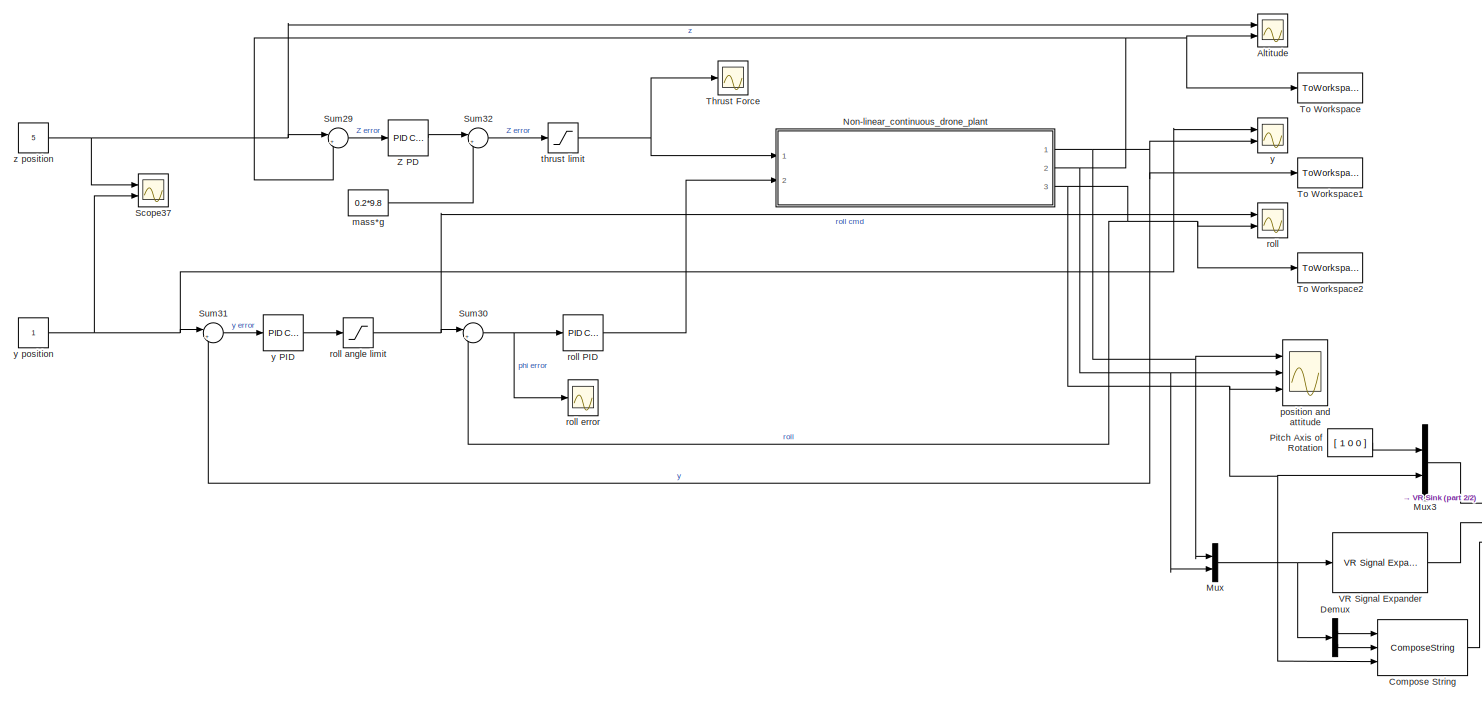
[diagram: root canvas - part 1/2, most of the canvas]
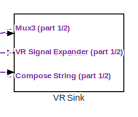
[diagram: root canvas - part 2/2, bottom right region]
MODEL slx_59ada7147401
KIND model
CONFIG AbsTol = auto
CONFIG EnableMultiTasking = off
CONFIG FixedStep = 0.01
CONFIG MaxStep = auto
CONFIG MinStep = auto
CONFIG RelTol = 1e-3
CONFIG SampleTimeConstraint = Unconstrained
CONFIG Solver = FixedStepAuto
CONFIG SolverName = FixedStepAuto
CONFIG StartTime = 0.0
CONFIG StopTime = 100
BLOCK [Scope] Altitude
  Floating = off
  NumInputPorts = 2
  Ports = [2]
  ScopeSpecificationString = Simulink.scopes.TimeScopeBlockCfg('CurrentConfiguration', extmgr.ConfigurationSet(extmgr.Configuration('Core','General UI',true),extmgr.Configuration('Core','Source UI',true),extmgr.Configuration('Sources','WiredSimulink',true,'DataLoggingVariableName','ScopeData10'),extmgr.Configuration('Visuals','Time Domain',true,'SerializedDisplays',{struct('MinYLimReal','-11.51801','MaxYLimReal','1.27978','YL...<+1466ch>
BLOCK [ComposeString] Compose String
  Format = 'Xe      : %7.2f m\nZe      : %7.2f m\nAttitude: %7.2f rad'
  Ports = [3, 1]
BLOCK [Demux] Demux
  Outputs = 2
  Ports = [1, 2]
BLOCK [Mux] Mux
  DisplayOption = bar
  Inputs = 2
  Ports = [2, 1]
BLOCK [Mux] Mux3
  DisplayOption = bar
  Inputs = 2
  Ports = [2, 1]
BLOCK [SubSystem] Non-linear_continuous_drone_plant
  Ports = [2, 3]
  ReferencedSubsystem = Non_linear_continuous_drone_plant
  RequestExecContextInheritance = off
BLOCK [Constant] Pitch Axis of Rotation
  Value = [ 1 0 0 ]
BLOCK [Scope] Scope37
  Floating = off
  NumInputPorts = 2
  Ports = [2]
  ScopeSpecificationString = Simulink.scopes.TimeScopeBlockCfg('CurrentConfiguration', extmgr.ConfigurationSet(extmgr.Configuration('Core','General UI',true),extmgr.Configuration('Core','Source UI',true),extmgr.Configuration('Sources','WiredSimulink',true,'DataLoggingVariableName','ScopeData12'),extmgr.Configuration('Visuals','Time Domain',true,'SerializedDisplays',{struct('MinYLimReal','-1.25','MaxYLimReal','1.25','YLabelRea...<+1427ch>
BLOCK [Sum] Sum29
  Inputs = |+-
  Ports = [2, 1]
BLOCK [Sum] Sum30
  Inputs = |+-
  Ports = [2, 1]
BLOCK [Sum] Sum31
  Inputs = |+-
  Ports = [2, 1]
BLOCK [Sum] Sum32
  Inputs = |+-
  NameLocation = top
  Ports = [2, 1]
BLOCK [Scope] Thrust Force
  Floating = off
  NumInputPorts = 1
  Ports = [1]
  ScopeSpecificationString = Simulink.scopes.TimeScopeBlockCfg('CurrentConfiguration', extmgr.ConfigurationSet(extmgr.Configuration('Core','General UI',true),extmgr.Configuration('Core','Source UI',true),extmgr.Configuration('Sources','WiredSimulink',true,'DataLoggingVariableName','ScopeData13'),extmgr.Configuration('Visuals','Time Domain',true,'SerializedDisplays',{struct('MinYLimReal','-3.83413','MaxYLimReal','33.75935','YL...<+1490ch>
BLOCK [ToWorkspace] To Workspace
  FixptAsFi = on
  MaxDataPoints = inf
  Ports = [1]
  SampleTime = -1
  VariableName = zout
BLOCK [ToWorkspace] To Workspace1
  FixptAsFi = on
  MaxDataPoints = inf
  Ports = [1]
  SampleTime = -1
  VariableName = yout
BLOCK [ToWorkspace] To Workspace2
  FixptAsFi = on
  MaxDataPoints = inf
  Ports = [1]
  SampleTime = -1
  VariableName = rollout
BLOCK [Reference] VR Signal Expander  REF=vrlib/VR Signal Expander
  Ports = [1, 1]
  SourceBlock = vrlib/VR Signal Expander
  SourceProductBaseCode = SL
  SourceType = VR Signal Expander
BLOCK [Reference] VR Sink  REF=vrlib/VR Sink
  InstantiateOnLoad = on
  Ports = [3]
  SourceBlock = vrlib/VR Sink
  SourceProductBaseCode = SL
  SourceType = Virtual Reality Sink
BLOCK [Reference] Z PD  REF=simulink/Continuous/PID Controller
  Ports = [1, 1]
  SourceBlock = simulink/Continuous/PID Controller
  SourceProductBaseCode = SL
  SourceType = PID 1dof
BLOCK [Constant] mass*g
  Value = 0.2*9.8
BLOCK [Scope] position and attitude
  Floating = off
  NumInputPorts = 3
  Ports = [3]
  ScopeSpecificationString = Simulink.scopes.TimeScopeBlockCfg('CurrentConfiguration', extmgr.ConfigurationSet(extmgr.Configuration('Core','General UI',true),extmgr.Configuration('Core','Source UI',true),extmgr.Configuration('Sources','WiredSimulink',true,'DataLoggingVariableName','ScopeData2'),extmgr.Configuration('Visuals','Time Domain',true,'SerializedDisplays',{struct('MinYLimReal','-0.125','MaxYLimReal','1.125','YLabelRe...<+2838ch>
BLOCK [Scope] roll
  Floating = off
  NumInputPorts = 2
  Ports = [2]
  ScopeSpecificationString = Simulink.scopes.TimeScopeBlockCfg('CurrentConfiguration', extmgr.ConfigurationSet(extmgr.Configuration('Core','General UI',true),extmgr.Configuration('Core','Source UI',true),extmgr.Configuration('Sources','WiredSimulink',true,'DataLoggingVariableName','ScopeData14'),extmgr.Configuration('Visuals','Time Domain',true,'SerializedDisplays',{struct('MinYLimReal','-0.21842','MaxYLimReal','0.60205','YLa...<+1482ch>
BLOCK [Reference] roll PID  REF=simulink/Continuous/PID Controller
  Ports = [1, 1]
  SourceBlock = simulink/Continuous/PID Controller
  SourceProductBaseCode = SL
  SourceType = PID 1dof
BLOCK [Saturate] roll angle limit
  LowerLimit = -0.52
  UpperLimit = 0.52
BLOCK [Scope] roll error
  Floating = off
  NumInputPorts = 1
  Ports = [1]
  ScopeSpecificationString = Simulink.scopes.TimeScopeBlockCfg('CurrentConfiguration', extmgr.ConfigurationSet(extmgr.Configuration('Core','General UI',true),extmgr.Configuration('Core','Source UI',true),extmgr.Configuration('Sources','WiredSimulink',true,'DataLoggingVariableName','ScopeData15'),extmgr.Configuration('Visuals','Time Domain',true,'SerializedDisplays',{struct('MinYLimReal','-0.41404','MaxYLimReal','0.62378','YLa...<+1485ch>
BLOCK [Saturate] thrust limit
  LowerLimit = 0
  UpperLimit = 30
BLOCK [Scope] y
  Floating = off
  NumInputPorts = 2
  Ports = [2]
  ScopeSpecificationString = Simulink.scopes.TimeScopeBlockCfg('CurrentConfiguration', extmgr.ConfigurationSet(extmgr.Configuration('Core','General UI',true),extmgr.Configuration('Core','Source UI',true),extmgr.Configuration('Sources','WiredSimulink',true,'DataLoggingVariableName','ScopeData16'),extmgr.Configuration('Visuals','Time Domain',true,'SerializedDisplays',{struct('MinYLimReal','-0.77028','MaxYLimReal','6.93256','YLa...<+1436ch>
BLOCK [Reference] y PID  REF=simulink/Continuous/PID Controller
  Ports = [1, 1]
  SourceBlock = simulink/Continuous/PID Controller
  SourceProductBaseCode = SL
  SourceType = PID 1dof
BLOCK [Constant] y position
BLOCK [Constant] z position
  Value = 5
LINE Compose String:1 -> VR Sink:3
LINE Demux:1 -> Compose String:1
LINE Demux:2 -> Compose String:2
LINE Mux3:1 -> VR Sink:1
NET Mux:1 -> Demux:1, VR Signal Expander:1
NET Non-linear_continuous_drone_plant:1 -> Mux:1, Sum31:2, To Workspace1:1, position and attitude:1, y:2
NET Non-linear_continuous_drone_plant:2 -> Altitude:2, Mux:2, Sum29:2, To Workspace:1, position and attitude:2
NET Non-linear_continuous_drone_plant:3 -> Compose String:3, Mux3:2, Sum30:2, To Workspace2:1, position and attitude:3, roll:2
LINE Pitch Axis of Rotation:1 -> Mux3:1
LINE Sum29:1 -> Z PD:1
NET Sum30:1 -> roll PID:1, roll error:1
LINE Sum31:1 -> y PID:1
LINE Sum32:1 -> thrust limit:1
LINE VR Signal Expander:1 -> VR Sink:2
LINE Z PD:1 -> Sum32:1
LINE mass*g:1 -> Sum32:2
LINE roll PID:1 -> Non-linear_continuous_drone_plant:2
NET roll angle limit:1 -> Sum30:1, roll:1
NET thrust limit:1 -> Non-linear_continuous_drone_plant:1, Thrust Force:1
LINE y PID:1 -> roll angle limit:1
NET y position:1 -> Scope37:2, Sum31:1, y:1
NET z position:1 -> Altitude:1, Scope37:1, Sum29:1
note: NET lines group one-source signal fan-out (src -> all destinations, sorted); 1:1 wires keep LINE
